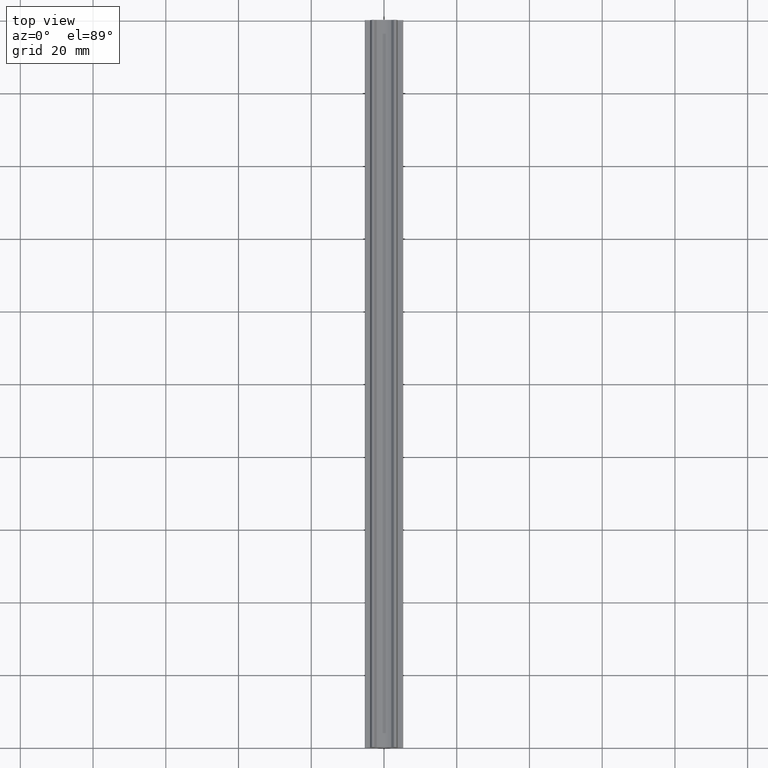
[diagram: clean part render]
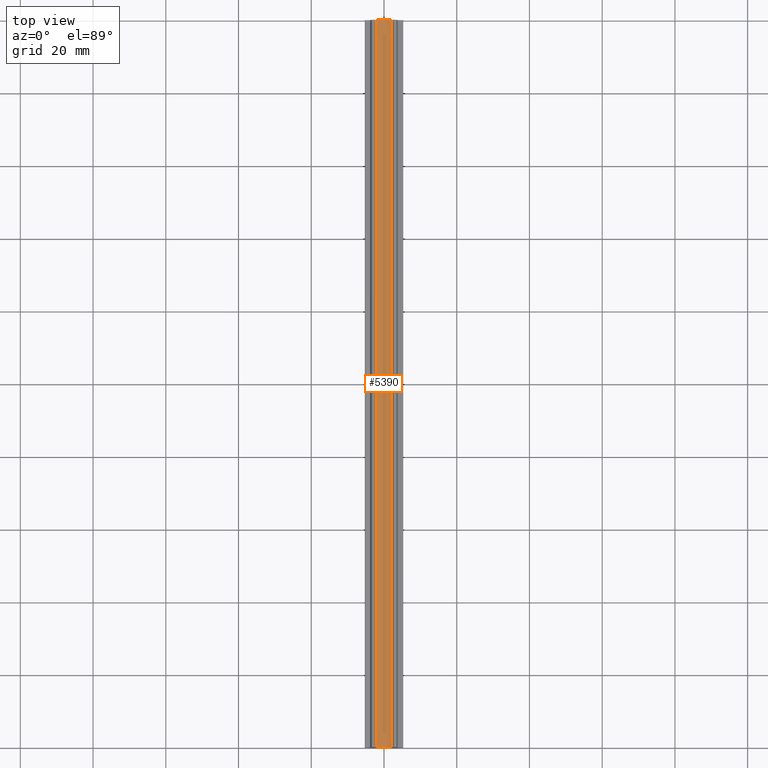
[diagram: same view with one face highlighted and labeled with its STEP entity id]
A machine part, top view. The second image highlights one B-rep face of the part: STEP entity #5390.
In plain terms, the highlighted face is a freeform B-spline surface patch.
Its self-contained STEP definition (entity closure, byte-faithful):
#406=CARTESIAN_POINT('',(1.999999999995220,0.0,0.417424305041910));
#407=VERTEX_POINT('',#406);
#413=CARTESIAN_POINT('',(-2.000000000003190,0.0,0.417424305045387));
#414=VERTEX_POINT('',#413);
#415=CARTESIAN_POINT('',(-2.000000000003188,0.0,0.417424305045390));
#416=CARTESIAN_POINT('',(-4.745336E-012,0.0,-0.455447255899168));
#417=CARTESIAN_POINT('',(1.999999999995217,0.0,0.417424305041912));
#425=(BOUNDED_CURVE()B_SPLINE_CURVE(2,(#415,#416,#417),.UNSPECIFIED.,.F.,.U.)CURVE()GEOMETRIC_REPRESENTATION_ITEM()QUASI_UNIFORM_CURVE()RATIONAL_B_SPLINE_CURVE((1.0,0.916515138991303,1.0))REPRESENTATION_ITEM(''));
#426=EDGE_CURVE('',#414,#407,#425,.T.);
#2270=CARTESIAN_POINT('',(-2.000000000003190,200.0,0.417424305045387));
#2271=VERTEX_POINT('',#2270);
#2277=CARTESIAN_POINT('',(1.999999999995220,200.0,0.417424305041910));
#2278=VERTEX_POINT('',#2277);
#2279=CARTESIAN_POINT('',(-2.000000000003188,200.0,0.417424305045390));
#2280=CARTESIAN_POINT('',(-4.745336E-012,200.000000000000030,-0.455447255899168));
#2281=CARTESIAN_POINT('',(1.999999999995217,200.0,0.417424305041912));
#2289=(BOUNDED_CURVE()B_SPLINE_CURVE(2,(#2279,#2280,#2281),.UNSPECIFIED.,.F.,.U.)CURVE()GEOMETRIC_REPRESENTATION_ITEM()QUASI_UNIFORM_CURVE()RATIONAL_B_SPLINE_CURVE((1.0,0.916515138991303,1.0))REPRESENTATION_ITEM(''));
#2290=EDGE_CURVE('',#2271,#2278,#2289,.T.);
#5358=CARTESIAN_POINT('',(1.999999999995220,200.0,0.417424305041910));
#5359=CARTESIAN_POINT('',(1.999999999995220,0.0,0.417424305041910));
#5360=QUASI_UNIFORM_CURVE('',1,(#5358,#5359),.UNSPECIFIED.,.F.,.U.);
#5361=EDGE_CURVE('',#2278,#407,#5360,.T.);
#5366=CARTESIAN_POINT('',(2.179970695901348,205.000000000000030,0.500252477636866));
#5367=CARTESIAN_POINT('',(2.179970695901348,-5.125000000000000,0.500252477636866));
#5368=CARTESIAN_POINT('',(-0.000907612126750,205.000000000000110,-0.556306980243427));
#5369=CARTESIAN_POINT('',(-0.000907612126750,-5.125000000000000,-0.556306980243427));
#5370=CARTESIAN_POINT('',(-2.181440629844484,205.000000000000090,0.500964905841979));
#5371=CARTESIAN_POINT('',(-2.181440629844484,-5.125000000000001,0.500964905841979));
#5379=(BOUNDED_SURFACE()B_SPLINE_SURFACE(1,2,((#5366,#5368,#5370),(#5367,#5369,#5371)),.UNSPECIFIED.,.F.,.F.,.U.)B_SPLINE_SURFACE_WITH_KNOTS((2,2),(3,3),(0.0,210.125000000000110),(0.0,4.591231337199624),.UNSPECIFIED.)GEOMETRIC_REPRESENTATION_ITEM()RATIONAL_B_SPLINE_SURFACE(((0.999693540569583,0.895758197645239,0.991167752232449),(0.999693540569583,0.895758197645239,0.991167752232449)))REPRESENTATION_ITEM('')SURFACE());
#5380=ORIENTED_EDGE('',*,*,#426,.T.);
#5381=ORIENTED_EDGE('',*,*,#5361,.F.);
#5382=ORIENTED_EDGE('',*,*,#2290,.F.);
#5383=CARTESIAN_POINT('',(-2.000000000003190,200.0,0.417424305045387));
#5384=CARTESIAN_POINT('',(-2.000000000003190,0.0,0.417424305045387));
#5385=QUASI_UNIFORM_CURVE('',1,(#5383,#5384),.UNSPECIFIED.,.F.,.U.);
#5386=EDGE_CURVE('',#2271,#414,#5385,.T.);
#5387=ORIENTED_EDGE('',*,*,#5386,.T.);
#5388=EDGE_LOOP('',(#5380,#5381,#5382,#5387));
#5389=FACE_OUTER_BOUND('',#5388,.T.);
#5390=ADVANCED_FACE('',(#5389),#5379,.F.);